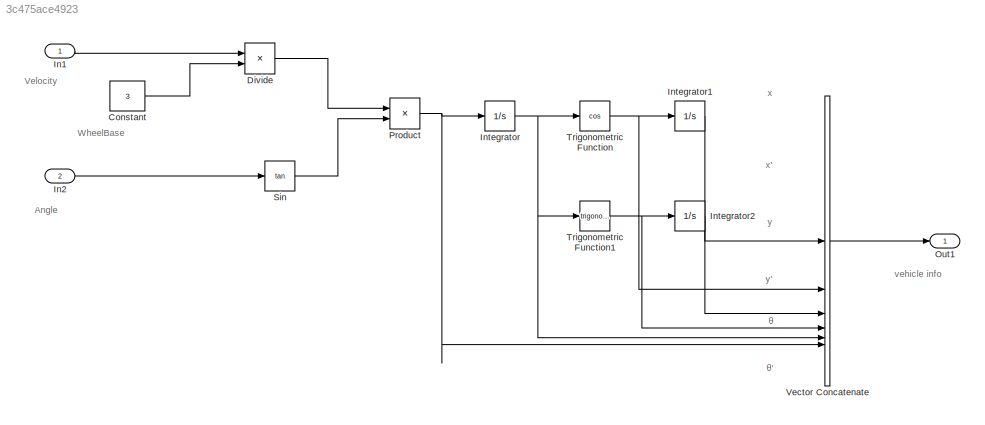
MODEL slx_3c475ace4923
KIND model
CONFIG AbsTol = auto
CONFIG EnableMultiTasking = off
CONFIG FixedStep = auto
CONFIG MaxStep = auto
CONFIG MinStep = auto
CONFIG RelTol = 1e-3
CONFIG SampleTimeConstraint = Unconstrained
CONFIG SolverName = VariableStepAuto
CONFIG StartTime = 0.0
CONFIG StopTime = 10.0
BLOCK [Constant] Constant
  Value = 3
BLOCK [Product] Divide
  Inputs = */
BLOCK [Inport] In1
BLOCK [Inport] In2
  Port = 2
BLOCK [Integrator] Integrator
BLOCK [Integrator] Integrator1
BLOCK [Integrator] Integrator2
BLOCK [Outport] Out1
BLOCK [Product] Product
BLOCK [Trigonometry] Sin
  Operator = tan
BLOCK [Trigonometry] Trigonometric Function
  Operator = cos
BLOCK [Trigonometry] Trigonometric Function1
BLOCK [Concatenate] Vector Concatenate
  NumInputs = 6
ANNOTATION (root): Angle
ANNOTATION (root): Velocity
ANNOTATION (root): WheelBase
ANNOTATION (root): vehicle info
ANNOTATION (root): x
ANNOTATION (root): x'
ANNOTATION (root): y
ANNOTATION (root): y'
ANNOTATION (root): θ
ANNOTATION (root): θ‘
LINE Constant:1 -> Divide:2
LINE Divide:1 -> Product:1
LINE In1:1 -> Divide:1
LINE In2:1 -> Sin:1
LINE Integrator1:1 -> Vector Concatenate:1
LINE Integrator2:1 -> Vector Concatenate:3
NET Integrator:1 -> Trigonometric Function1:1, Trigonometric Function:1, Vector Concatenate:5
NET Product:1 -> Integrator:1, Vector Concatenate:6
LINE Sin:1 -> Product:2
NET Trigonometric Function1:1 -> Integrator2:1, Vector Concatenate:4
NET Trigonometric Function:1 -> Integrator1:1, Vector Concatenate:2
LINE Vector Concatenate:1 -> Out1:1
note: NET lines group one-source signal fan-out (src -> all destinations, sorted); 1:1 wires keep LINE
